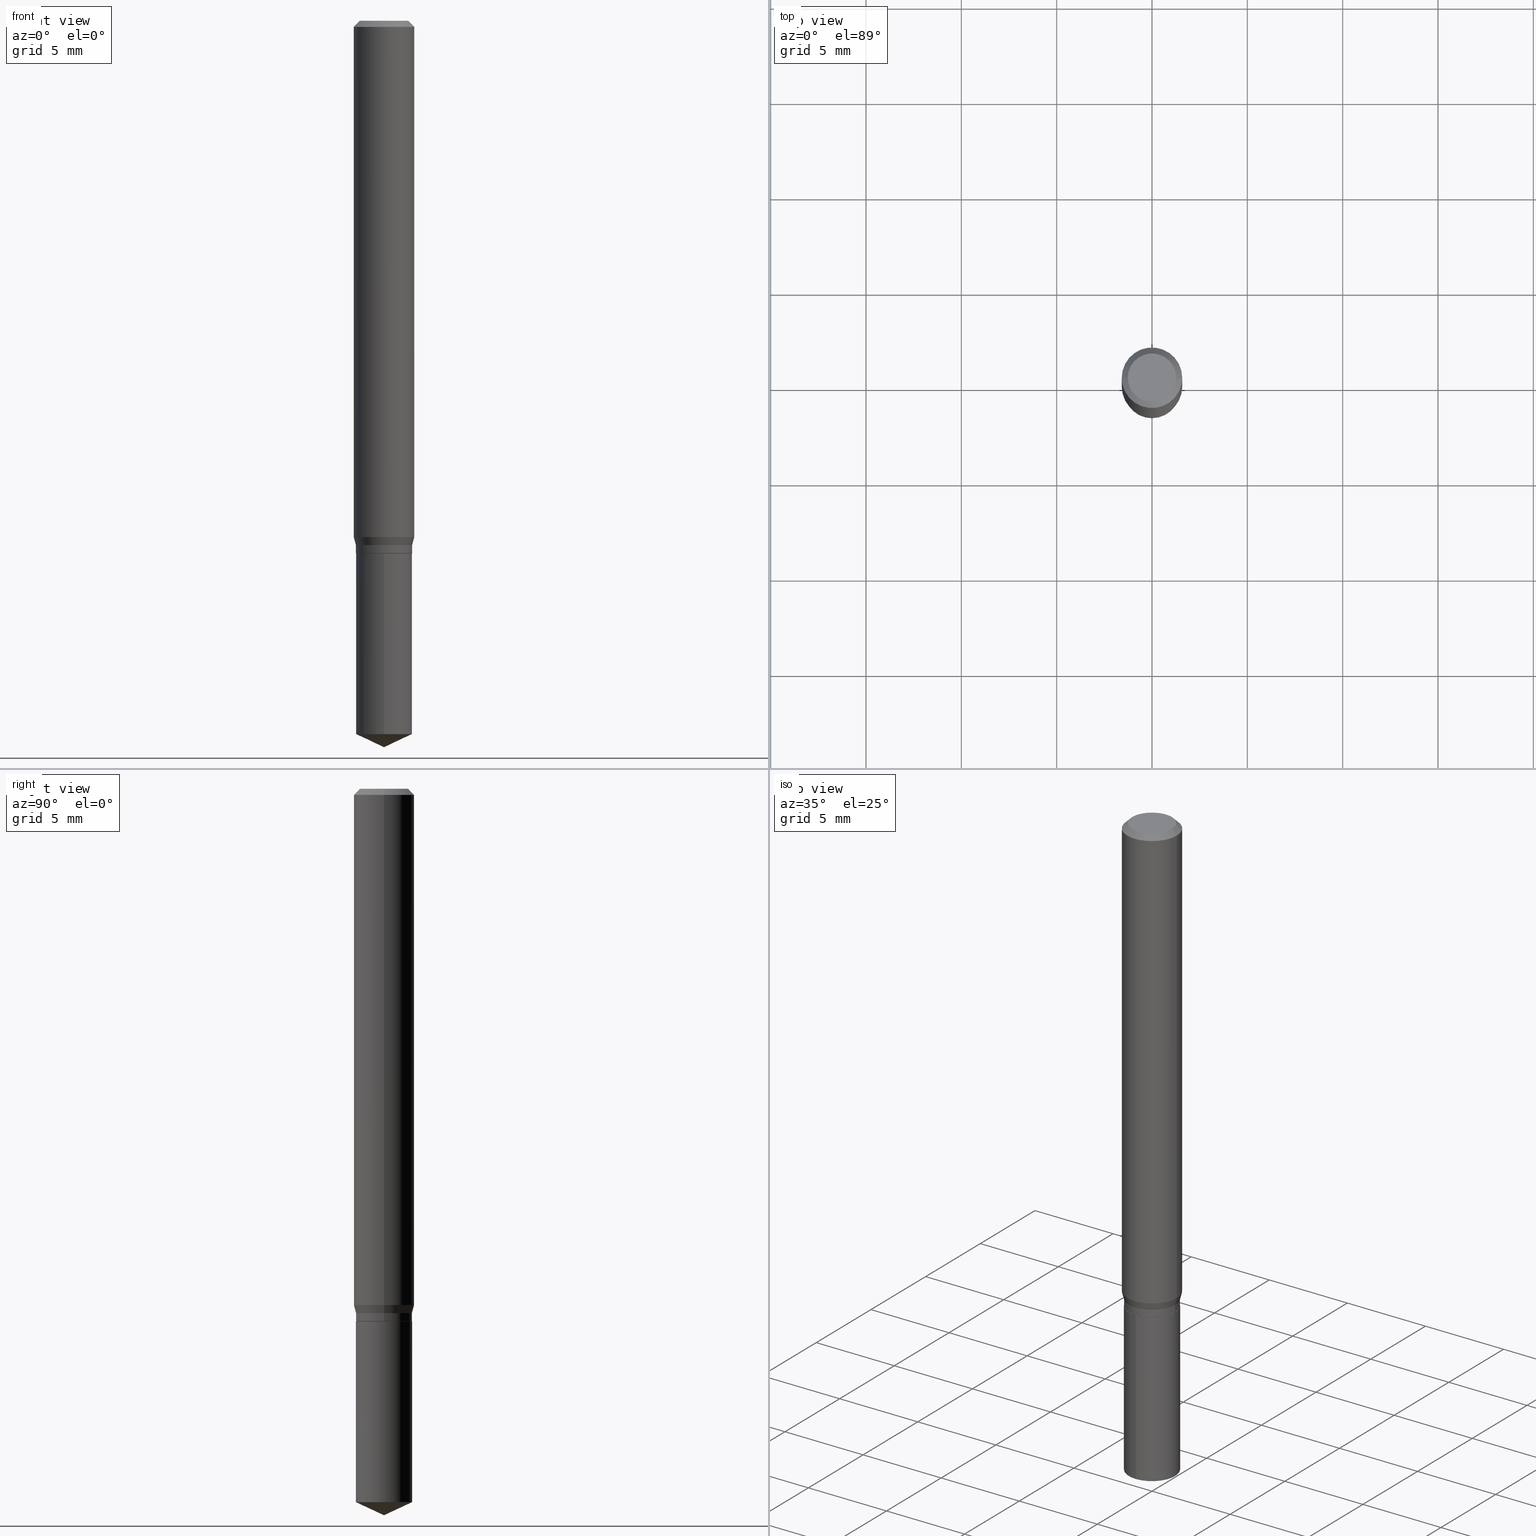
[diagram: canonical four-view strip — front | top / right | iso, engineering-drawing reading convention]
A machine part, canonical four-view strip (front | top / right | iso — engineering-drawing reading convention). The complete STEP part file that produces these views, byte-faithful:
ISO-10303-21;
HEADER;
FILE_DESCRIPTION (( 'STEP AP203' ),
    '1' );
FILE_NAME ('07393.STEP',
    '2024-04-23T21:00:42',
    ( '' ),
    ( '' ),
    'SwSTEP 2.0',
    'SolidWorks 2023',
    '' );
FILE_SCHEMA (( 'CONFIG_CONTROL_DESIGN' ));
ENDSEC;

DATA;
#1 = DIRECTION ( 'NONE',  ( 2.445399690415121250E-29, -3.491580316559632610E-15, -1.000000000000000000 ) ) ;
#2 = ADVANCED_FACE ( 'NONE', ( #189 ), #333, .F. ) ;
#3 = VERTEX_POINT ( 'NONE', #476 ) ;
#4 = AXIS2_PLACEMENT_3D ( 'NONE', #7, #179, #309 ) ;
#5 = ORIENTED_EDGE ( 'NONE', *, *, #56, .F. ) ;
#6 = EDGE_CURVE ( 'NONE', #181, #163, #124, .T. ) ;
#7 = CARTESIAN_POINT ( 'NONE',  ( 2.690015686803650369E-29, -3.840629472727460101E-15, -1.100000000000000089 ) ) ;
#8 =( CONVERSION_BASED_UNIT ( 'INCH', #119 ) LENGTH_UNIT ( ) NAMED_UNIT ( #483 ) );
#9 = DIRECTION ( 'NONE',  ( -2.445468806185136597E-29, 3.491481338843145583E-15, 1.000000000000000000 ) ) ;
#10 = DATE_TIME_ROLE ( 'creation_date' ) ;
#11 = CIRCLE ( 'NONE', #319, 0.06250000000000012490 ) ;
#12 = DIRECTION ( 'NONE',  ( 2.445468806185136597E-29, -3.491481338843145583E-15, -1.000000000000000000 ) ) ;
#13 = LOCAL_TIME ( 17, 0, 42.00000000000000000, #466 ) ;
#14 = DESIGN_CONTEXT ( 'detailed design', #170, 'design' ) ;
#15 = CYLINDRICAL_SURFACE ( 'NONE', #112, 0.06250000000000006939 ) ;
#16 = COORDINATED_UNIVERSAL_TIME_OFFSET ( 5, 0, .BEHIND. ) ;
#17 = CARTESIAN_POINT ( 'NONE',  ( 2.690015686803650369E-29, -3.840629472727460101E-15, -1.100000000000000089 ) ) ;
#18 = SHAPE_DEFINITION_REPRESENTATION ( #453, #386 ) ;
#19 = ORIENTED_EDGE ( 'NONE', *, *, #108, .T. ) ;
#20 = CARTESIAN_POINT ( 'NONE',  ( 2.647464529576028949E-29, -3.779877697431589411E-15, -1.082600000000000007 ) ) ;
#21 = AXIS2_PLACEMENT_3D ( 'NONE', #256, #407, #69 ) ;
#22 = CARTESIAN_POINT ( 'NONE',  ( 3.056836007731440977E-31, -4.364351673553961068E-17, -0.01250000000000008223 ) ) ;
#23 = LINE ( 'NONE', #87, #440 ) ;
#24 = EDGE_CURVE ( 'NONE', #234, #138, #165, .T. ) ;
#25 = DIRECTION ( 'NONE',  ( -2.445468806185136597E-29, 3.491481338843145583E-15, 1.000000000000000000 ) ) ;
#26 = ORIENTED_EDGE ( 'NONE', *, *, #404, .F. ) ;
#27 = DIRECTION ( 'NONE',  ( -0.7071067811865453523, 2.468850131082234184E-15, -0.7071067811865496822 ) ) ;
#28 = DIRECTION ( 'NONE',  ( -2.445468806185136597E-29, 3.491481338843145583E-15, 1.000000000000000000 ) ) ;
#29 = VERTEX_POINT ( 'NONE', #465 ) ;
#30 = AXIS2_PLACEMENT_3D ( 'NONE', #33, #436, #209 ) ;
#31 = EDGE_CURVE ( 'NONE', #218, #268, #35, .T. ) ;
#32 = DIRECTION ( 'NONE',  ( -2.445468806185136597E-29, 3.491481338843145583E-15, 1.000000000000000000 ) ) ;
#33 = CARTESIAN_POINT ( 'NONE',  ( 2.690015686803650369E-29, -3.840629472727460101E-15, -1.100000000000000089 ) ) ;
#34 = DIRECTION ( 'NONE',  ( -2.445399690415121530E-29, 3.491580316559632610E-15, 1.000000000000000000 ) ) ;
#35 = CIRCLE ( 'NONE', #454, 0.06250000000000000000 ) ;
#36 = ORGANIZATION ( 'UNSPECIFIED', 'UNSPECIFIED', '' ) ;
#37 = ORIENTED_EDGE ( 'NONE', *, *, #186, .T. ) ;
#38 = CARTESIAN_POINT ( 'NONE',  ( 0.05754999999999999699, -4.242498974828304422E-15, -1.100000000000000089 ) ) ;
#39 = MANIFOLD_SOLID_BREP ( 'Body-Move/Copy2[1]', #303 ) ;
#40 = ADVANCED_FACE ( 'NONE', ( #300 ), #373, .T. ) ;
#41 = VERTEX_POINT ( 'NONE', #89 ) ;
#42 = DIRECTION ( 'NONE',  ( -2.445468806185136877E-29, 3.491481338843145188E-15, 1.000000000000000000 ) ) ;
#43 = MANIFOLD_SOLID_BREP ( 'Body-Move/Copy2[2]', #462 ) ;
#44 = EDGE_LOOP ( 'NONE', ( #180, #142, #357, #420 ) ) ;
#45 = EDGE_CURVE ( 'NONE', #3, #41, #392, .T. ) ;
#46 = DIRECTION ( 'NONE',  ( -2.445399690415121530E-29, 3.491580316559632610E-15, 1.000000000000000000 ) ) ;
#47 = ORIENTED_EDGE ( 'NONE', *, *, #237, .F. ) ;
#48 = CONICAL_SURFACE ( 'NONE', #311, 84.42940631927396566, 1.134464013796314230 ) ;
#49 = FACE_OUTER_BOUND ( 'NONE', #408, .T. ) ;
#50 = ORIENTED_EDGE ( 'NONE', *, *, #94, .F. ) ;
#51 = AXIS2_PLACEMENT_3D ( 'NONE', #126, #46, #451 ) ;
#52 = EDGE_CURVE ( 'NONE', #3, #79, #169, .T. ) ;
#53 = ORIENTED_EDGE ( 'NONE', *, *, #31, .F. ) ;
#54 = DIRECTION ( 'NONE',  ( 2.438088387897960049E-29, -3.491481338843145188E-15, -1.000000000000000000 ) ) ;
#55 = APPROVAL_STATUS ( 'not_yet_approved' ) ;
#56 = EDGE_CURVE ( 'NONE', #484, #270, #352, .T. ) ;
#57 = CARTESIAN_POINT ( 'NONE',  ( -4.053609834396608520E-16, -0.05805000000000383464, -1.099999999999999867 ) ) ;
#58 = PERSON_AND_ORGANIZATION ( #367, #36 ) ;
#59 = ORIENTED_EDGE ( 'NONE', *, *, #340, .F. ) ;
#60 = CIRCLE ( 'NONE', #4, 0.05804999999999999744 ) ;
#61 = FACE_OUTER_BOUND ( 'NONE', #267, .T. ) ;
#62 = PERSON_AND_ORGANIZATION_ROLE ( 'creator' ) ;
#63 = CALENDAR_DATE ( 2024, 23, 4 ) ;
#64 = ORIENTED_EDGE ( 'NONE', *, *, #227, .T. ) ;
#65 = CARTESIAN_POINT ( 'NONE',  ( 4.124700581087740822E-16, 0.05804999999999614635, -1.100000000000000089 ) ) ;
#66 = EDGE_CURVE ( 'NONE', #79, #29, #11, .T. ) ;
#67 = AXIS2_PLACEMENT_3D ( 'NONE', #159, #306, #419 ) ;
#68 = ORIENTED_EDGE ( 'NONE', *, *, #45, .F. ) ;
#69 = DIRECTION ( 'NONE',  ( 1.000000000000000000, -6.982962677686262766E-15, 0.000000000000000000 ) ) ;
#70 = ORIENTED_EDGE ( 'NONE', *, *, #208, .F. ) ;
#71 = EDGE_LOOP ( 'NONE', ( #477, #122, #5 ) ) ;
#72 = DIRECTION ( 'NONE',  ( 1.000000000000000000, -6.982962677686263555E-15, 0.000000000000000000 ) ) ;
#73 = DIRECTION ( 'NONE',  ( 1.000000000000000000, -6.982962677686262766E-15, 0.000000000000000000 ) ) ;
#74 = AXIS2_PLACEMENT_3D ( 'NONE', #274, #195, #425 ) ;
#75 = LOCAL_TIME ( 17, 0, 42.00000000000000000, #314 ) ;
#76 = FACE_OUTER_BOUND ( 'NONE', #228, .T. ) ;
#77 = DIRECTION ( 'NONE',  ( -1.000000000000000000, 6.982962677686266711E-15, 0.000000000000000000 ) ) ;
#78 = DIRECTION ( 'NONE',  ( -2.445468806185136597E-29, 3.491481338843145583E-15, 1.000000000000000000 ) ) ;
#79 = VERTEX_POINT ( 'NONE', #421 ) ;
#80 = DIRECTION ( 'NONE',  ( 1.000000000000000000, -6.982962677686263555E-15, 0.000000000000000000 ) ) ;
#81 = EDGE_LOOP ( 'NONE', ( #26, #297, #184, #445 ) ) ;
#82 = VECTOR ( 'NONE', #396, 39.37007874015748143 ) ;
#83 = VECTOR ( 'NONE', #42, 39.37007874015748143 ) ;
#84 = CYLINDRICAL_SURFACE ( 'NONE', #51, 0.05804999999999999744 ) ;
#85 = DIRECTION ( 'NONE',  ( 1.000000000000000000, -6.982962677686266711E-15, 4.876176775795935232E-29 ) ) ;
#86 = EDGE_LOOP ( 'NONE', ( #486, #444, #236, #423 ) ) ;
#87 = CARTESIAN_POINT ( 'NONE',  ( -0.05804999999999999744, -3.367407639322851320E-15, -1.082600000000000007 ) ) ;
#88 = AXIS2_PLACEMENT_3D ( 'NONE', #299, #32, #80 ) ;
#89 = CARTESIAN_POINT ( 'NONE',  ( -0.05804999999999999744, -3.396910656636075914E-15, -1.082600000000000007 ) ) ;
#90 = CARTESIAN_POINT ( 'NONE',  ( 2.688792952400557567E-29, -3.838883732058038598E-15, -1.099499999999999922 ) ) ;
#91 = CYLINDRICAL_SURFACE ( 'NONE', #132, 0.06250000000000006939 ) ;
#92 = PERSON_AND_ORGANIZATION ( #367, #36 ) ;
#93 = DIRECTION ( 'NONE',  ( -2.445468806185136877E-29, 3.491481338843145188E-15, 1.000000000000000000 ) ) ;
#94 = EDGE_CURVE ( 'NONE', #163, #181, #174, .T. ) ;
#95 = DIRECTION ( 'NONE',  ( 1.000000000000000000, -6.982962677686266711E-15, 4.876176775795935793E-29 ) ) ;
#96 = DIRECTION ( 'NONE',  ( -2.445468806185136597E-29, 3.491481338843145583E-15, 1.000000000000000000 ) ) ;
#97 = CALENDAR_DATE ( 2024, 23, 4 ) ;
#98 = PERSON_AND_ORGANIZATION_ROLE ( 'classification_officer' ) ;
#99 = ADVANCED_FACE ( 'NONE', ( #328 ), #48, .T. ) ;
#100 = CIRCLE ( 'NONE', #382, 0.05804999999999999744 ) ;
#101 = DIRECTION ( 'NONE',  ( 1.000000000000000000, -6.982962677686266711E-15, 0.000000000000000000 ) ) ;
#102 = VECTOR ( 'NONE', #145, 39.37007874015748143 ) ;
#103 = LINE ( 'NONE', #301, #149 ) ;
#104 = FACE_OUTER_BOUND ( 'NONE', #290, .T. ) ;
#105 = LINE ( 'NONE', #226, #406 ) ;
#106 = VERTEX_POINT ( 'NONE', #468 ) ;
#107 = ORIENTED_EDGE ( 'NONE', *, *, #413, .F. ) ;
#108 = EDGE_CURVE ( 'NONE', #41, #29, #23, .T. ) ;
#109 = FACE_OUTER_BOUND ( 'NONE', #185, .T. ) ;
#110 = CARTESIAN_POINT ( 'NONE',  ( 3.056836007731440977E-31, -4.364351673553961068E-17, -0.01250000000000008223 ) ) ;
#111 = PRODUCT_DEFINITION ( 'UNKNOWN', '', #448, #14 ) ;
#112 = AXIS2_PLACEMENT_3D ( 'NONE', #277, #439, #95 ) ;
#113 = DIRECTION ( 'NONE',  ( -6.982962677686265922E-15, -1.000000000000000000, 4.706025828879006993E-15 ) ) ;
#114 = APPROVAL ( #172, 'UNSPECIFIED' ) ;
#115 = ORIENTED_EDGE ( 'NONE', *, *, #263, .T. ) ;
#116 = EDGE_CURVE ( 'NONE', #262, #106, #60, .T. ) ;
#117 = DIRECTION ( 'NONE',  ( -2.445468806185136597E-29, 3.491481338843145583E-15, 1.000000000000000000 ) ) ;
#118 = CIRCLE ( 'NONE', #337, 0.06250000000000012490 ) ;
#119 = LENGTH_MEASURE_WITH_UNIT ( LENGTH_MEASURE( 0.02539999999999999897 ), #235 );
#120 = VERTEX_POINT ( 'NONE', #394 ) ;
#121 = LINE ( 'NONE', #273, #157 ) ;
#122 = ORIENTED_EDGE ( 'NONE', *, *, #307, .T. ) ;
#123 = ORIENTED_EDGE ( 'NONE', *, *, #298, .T. ) ;
#124 = CIRCLE ( 'NONE', #156, 0.05804999999999999744 ) ;
#125 = CIRCLE ( 'NONE', #463, 0.05804999999999999744 ) ;
#126 = CARTESIAN_POINT ( 'NONE',  ( 2.690015686803650369E-29, -3.840629472727460101E-15, -1.100000000000000089 ) ) ;
#127 = DIRECTION ( 'NONE',  ( 1.000000000000000000, -6.982962677686263555E-15, 0.000000000000000000 ) ) ;
#128 = COORDINATED_UNIVERSAL_TIME_OFFSET ( 5, 0, .BEHIND. ) ;
#129 = CARTESIAN_POINT ( 'NONE',  ( -4.053609834396516322E-16, -0.05805000000000513222, -1.472930840444102163 ) ) ;
#130 = ADVANCED_FACE ( 'NONE', ( #161 ), #428, .F. ) ;
#131 = DIRECTION ( 'NONE',  ( -2.445468806185136597E-29, 3.491481338843145583E-15, 1.000000000000000000 ) ) ;
#132 = AXIS2_PLACEMENT_3D ( 'NONE', #241, #9, #245 ) ;
#133 = ORIENTED_EDGE ( 'NONE', *, *, #485, .T. ) ;
#134 = ORIENTED_EDGE ( 'NONE', *, *, #194, .F. ) ;
#135 = CARTESIAN_POINT ( 'NONE',  ( -0.05804999999999999744, 4.124700581087381397E-16, -2.855441819892972461E-30 ) ) ;
#136 = ORIENTED_EDGE ( 'NONE', *, *, #435, .F. ) ;
#137 = VERTEX_POINT ( 'NONE', #371 ) ;
#138 = VERTEX_POINT ( 'NONE', #478 ) ;
#139 = DIRECTION ( 'NONE',  ( 1.000000000000000000, -6.982962677686264344E-15, 0.000000000000000000 ) ) ;
#140 = CIRCLE ( 'NONE', #67, 0.04999999999999999584 ) ;
#141 = ORIENTED_EDGE ( 'NONE', *, *, #6, .T. ) ;
#142 = ORIENTED_EDGE ( 'NONE', *, *, #194, .T. ) ;
#143 = UNCERTAINTY_MEASURE_WITH_UNIT (LENGTH_MEASURE( 1.000000000000000082E-05 ), #8, 'distance_accuracy_value', 'NONE');
#144 = DIRECTION ( 'NONE',  ( -0.7071067811865232589, 7.493145998870265808E-15, 0.7071067811865715536 ) ) ;
#145 = DIRECTION ( 'NONE',  ( -2.445468806185136877E-29, 3.491481338843145188E-15, 1.000000000000000000 ) ) ;
#146 = CARTESIAN_POINT ( 'NONE',  ( 0.04999999999999999584, -4.077247707424184212E-16, -1.592040838888913461E-18 ) ) ;
#147 = CC_DESIGN_PERSON_AND_ORGANIZATION_ASSIGNMENT ( #403, #62, ( #111 ) ) ;
#148 = VECTOR ( 'NONE', #291, 39.37007874015748143 ) ;
#149 = VECTOR ( 'NONE', #385, 39.37007874015748854 ) ;
#150 = EDGE_CURVE ( 'NONE', #181, #41, #200, .T. ) ;
#151 = DIRECTION ( 'NONE',  ( -2.445468806185136597E-29, 3.491481338843145583E-15, 1.000000000000000000 ) ) ;
#152 = CARTESIAN_POINT ( 'NONE',  ( 2.690015686803650369E-29, -3.840629472727460101E-15, -1.100000000000000089 ) ) ;
#153 = CYLINDRICAL_SURFACE ( 'NONE', #417, 0.05804999999999999744 ) ;
#154 = FACE_OUTER_BOUND ( 'NONE', #44, .T. ) ;
#155 = ADVANCED_FACE ( 'NONE', ( #61 ), #91, .T. ) ;
#156 = AXIS2_PLACEMENT_3D ( 'NONE', #171, #25, #472 ) ;
#157 = VECTOR ( 'NONE', #389, 39.37007874015748854 ) ;
#158 = PLANE ( 'NONE',  #233 ) ;
#159 = CARTESIAN_POINT ( 'NONE',  ( 3.893286209682126177E-47, -5.558580879666067980E-33, -1.592040838891559689E-18 ) ) ;
#160 = ORIENTED_EDGE ( 'NONE', *, *, #31, .T. ) ;
#161 = FACE_OUTER_BOUND ( 'NONE', #391, .T. ) ;
#162 = DIRECTION ( 'NONE',  ( 1.000000000000000000, 0.000000000000000000, 0.000000000000000000 ) ) ;
#163 = VERTEX_POINT ( 'NONE', #164 ) ;
#164 = CARTESIAN_POINT ( 'NONE',  ( 0.05804999999999999744, -4.244244715497725926E-15, -1.099499999999999922 ) ) ;
#165 = CIRCLE ( 'NONE', #251, 0.05754999999999999699 ) ;
#166 = AXIS2_PLACEMENT_3D ( 'NONE', #17, #323, #282 ) ;
#167 = APPROVAL_ROLE ( '' ) ;
#168 = DIRECTION ( 'NONE',  ( -1.000000000000000000, 6.982962677686266711E-15, 0.000000000000000000 ) ) ;
#169 = LINE ( 'NONE', #313, #481 ) ;
#170 = APPLICATION_CONTEXT ( 'configuration controlled 3d designs of mechanical parts and assemblies' ) ;
#171 = CARTESIAN_POINT ( 'NONE',  ( 2.688792952400557567E-29, -3.838883732058038598E-15, -1.099499999999999922 ) ) ;
#172 = APPROVAL_STATUS ( 'not_yet_approved' ) ;
#173 = EDGE_CURVE ( 'NONE', #270, #106, #220, .T. ) ;
#174 = CIRCLE ( 'NONE', #399, 0.05804999999999999744 ) ;
#175 = DIRECTION ( 'NONE',  ( 0.2588190451025211281, 1.565188264969623940E-15, 0.9659258262890682012 ) ) ;
#176 = ADVANCED_FACE ( 'NONE', ( #203 ), #15, .T. ) ;
#177 = DIRECTION ( 'NONE',  ( 1.000000000000000000, -6.982962677686262766E-15, 0.000000000000000000 ) ) ;
#178 = ORIENTED_EDGE ( 'NONE', *, *, #237, .T. ) ;
#179 = DIRECTION ( 'NONE',  ( -2.445399690415121530E-29, 3.491580316559632610E-15, 1.000000000000000000 ) ) ;
#180 = ORIENTED_EDGE ( 'NONE', *, *, #227, .F. ) ;
#181 = VERTEX_POINT ( 'NONE', #250 ) ;
#182 = VECTOR ( 'NONE', #144, 39.37007874015748854 ) ;
#183 = SECURITY_CLASSIFICATION ( '', '', #350 ) ;
#184 = ORIENTED_EDGE ( 'NONE', *, *, #173, .T. ) ;
#185 = EDGE_LOOP ( 'NONE', ( #398, #368, #68, #231 ) ) ;
#186 = EDGE_CURVE ( 'NONE', #268, #218, #447, .T. ) ;
#187 = CONICAL_SURFACE ( 'NONE', #415, 0.05804999999999999744, 0.2617993877991497964 ) ;
#188 = AXIS2_PLACEMENT_3D ( 'NONE', #338, #151, #450 ) ;
#189 = FACE_OUTER_BOUND ( 'NONE', #326, .T. ) ;
#190 = PERSON_AND_ORGANIZATION ( #367, #36 ) ;
#191 = ORIENTED_EDGE ( 'NONE', *, *, #435, .T. ) ;
#192 = FACE_OUTER_BOUND ( 'NONE', #197, .T. ) ;
#193 = CARTESIAN_POINT ( 'NONE',  ( 2.690015686803650369E-29, -3.840629472727460101E-15, -1.100000000000000089 ) ) ;
#194 = EDGE_CURVE ( 'NONE', #138, #234, #265, .T. ) ;
#195 = DIRECTION ( 'NONE',  ( -2.445399690415121530E-29, 3.491580316559632610E-15, 1.000000000000000000 ) ) ;
#196 = CARTESIAN_POINT ( 'NONE',  ( 0.000000000000000000, 0.000000000000000000, 0.000000000000000000 ) ) ;
#197 = EDGE_LOOP ( 'NONE', ( #123, #369, #449, #345 ) ) ;
#198 = PRODUCT ( '07393', '07393', '', ( #426 ) ) ;
#199 = ADVANCED_FACE ( 'NONE', ( #230 ), #212, .T. ) ;
#200 = LINE ( 'NONE', #135, #279 ) ;
#201 = PERSON_AND_ORGANIZATION ( #367, #36 ) ;
#202 = APPROVAL ( #55, 'UNSPECIFIED' ) ;
#203 = FACE_OUTER_BOUND ( 'NONE', #86, .T. ) ;
#204 = VECTOR ( 'NONE', #27, 39.37007874015748143 ) ;
#205 = PERSON_AND_ORGANIZATION ( #367, #36 ) ;
#206 = APPLICATION_PROTOCOL_DEFINITION ( 'international standard', 'config_control_design', 1994, #170 ) ;
#207 = DATE_AND_TIME ( #429, #75 ) ;
#208 = EDGE_CURVE ( 'NONE', #41, #3, #487, .T. ) ;
#209 = DIRECTION ( 'NONE',  ( 1.000000000000000000, -6.982962677686265922E-15, 4.876176775795935793E-29 ) ) ;
#210 = CC_DESIGN_PERSON_AND_ORGANIZATION_ASSIGNMENT ( #190, #317, ( #198 ) ) ;
#211 = CALENDAR_DATE ( 2024, 23, 4 ) ;
#212 = CONICAL_SURFACE ( 'NONE', #363, 0.05754999999999999699, 0.7853981633974141952 ) ;
#213 = ORIENTED_EDGE ( 'NONE', *, *, #150, .F. ) ;
#214 = CARTESIAN_POINT ( 'NONE',  ( 2.647464529576028949E-29, -3.779877697431589411E-15, -1.082600000000000007 ) ) ;
#215 = FACE_OUTER_BOUND ( 'NONE', #457, .T. ) ;
#216 = DIRECTION ( 'NONE',  ( -2.445468806185136597E-29, 3.491481338843145583E-15, 1.000000000000000000 ) ) ;
#217 = DIRECTION ( 'NONE',  ( 1.000000000000000000, -6.982962677686266711E-15, 0.000000000000000000 ) ) ;
#218 = VERTEX_POINT ( 'NONE', #334 ) ;
#219 = DIRECTION ( 'NONE',  ( -2.445468806185136597E-29, 3.491481338843145583E-15, 1.000000000000000000 ) ) ;
#220 = LINE ( 'NONE', #57, #82 ) ;
#221 = DIRECTION ( 'NONE',  ( -6.328713451373368590E-15, -0.9063077870366484934, 0.4226182617407026054 ) ) ;
#222 = ORIENTED_EDGE ( 'NONE', *, *, #66, .F. ) ;
#223 = DIRECTION ( 'NONE',  ( 1.000000000000000000, -6.982962677686265922E-15, 4.875957971899673662E-29 ) ) ;
#224 = AXIS2_PLACEMENT_3D ( 'NONE', #261, #411, #223 ) ;
#225 = ORIENTED_EDGE ( 'NONE', *, *, #116, .T. ) ;
#226 = CARTESIAN_POINT ( 'NONE',  ( 3.668099535622682155E-29, -5.237370474839448718E-15, -1.500000000000000222 ) ) ;
#227 = EDGE_CURVE ( 'NONE', #138, #181, #293, .T. ) ;
#228 = EDGE_LOOP ( 'NONE', ( #410, #133, #489 ) ) ;
#229 = CARTESIAN_POINT ( 'NONE',  ( 0.05804999999999999744, -4.053609834396877719E-16, 2.830620618349540414E-30 ) ) ;
#230 = FACE_OUTER_BOUND ( 'NONE', #412, .T. ) ;
#231 = ORIENTED_EDGE ( 'NONE', *, *, #343, .F. ) ;
#232 = CARTESIAN_POINT ( 'NONE',  ( -0.05754999999999999699, -3.431712128297522910E-15, -1.100000000000000089 ) ) ;
#233 = AXIS2_PLACEMENT_3D ( 'NONE', #341, #1, #383 ) ;
#234 = VERTEX_POINT ( 'NONE', #38 ) ;
#235 =( LENGTH_UNIT ( ) NAMED_UNIT ( * ) SI_UNIT ( $, .METRE. ) );
#236 = ORIENTED_EDGE ( 'NONE', *, *, #186, .F. ) ;
#237 = EDGE_CURVE ( 'NONE', #336, #268, #289, .T. ) ;
#238 = DIRECTION ( 'NONE',  ( 1.000000000000000000, -6.982962677686262766E-15, 0.000000000000000000 ) ) ;
#239 = ORIENTED_EDGE ( 'NONE', *, *, #388, .F. ) ;
#240 = AXIS2_PLACEMENT_3D ( 'NONE', #401, #216, #101 ) ;
#241 = CARTESIAN_POINT ( 'NONE',  ( 0.000000000000000000, 0.000000000000000000, 0.000000000000000000 ) ) ;
#242 = ADVANCED_FACE ( 'NONE', ( #104 ), #329, .T. ) ;
#243 = CARTESIAN_POINT ( 'NONE',  ( 1.946643104841063088E-47, -2.779290439833033990E-33, -7.960204194457798443E-19 ) ) ;
#244 = APPROVAL_STATUS ( 'not_yet_approved' ) ;
#245 = DIRECTION ( 'NONE',  ( 1.000000000000000000, -6.982962677686266711E-15, 4.876176775795935793E-29 ) ) ;
#246 = DIRECTION ( 'NONE',  ( -2.445468806185136597E-29, 3.491481338843145583E-15, 1.000000000000000000 ) ) ;
#247 = CC_DESIGN_PERSON_AND_ORGANIZATION_ASSIGNMENT ( #92, #98, ( #183 ) ) ;
#248 = APPROVAL_DATE_TIME ( #321, #202 ) ;
#249 = CARTESIAN_POINT ( 'NONE',  ( 3.601980648571909248E-29, -5.142747454660128608E-15, -1.472930840444102385 ) ) ;
#250 = CARTESIAN_POINT ( 'NONE',  ( -0.05804999999999999744, -3.396910656636075914E-15, -1.099499999999999922 ) ) ;
#251 = AXIS2_PLACEMENT_3D ( 'NONE', #280, #96, #177 ) ;
#252 = DATE_AND_TIME ( #211, #304 ) ;
#253 = CARTESIAN_POINT ( 'NONE',  ( 2.690015686803650369E-29, -3.840629472727460101E-15, -1.100000000000000089 ) ) ;
#254 = ORIENTED_EDGE ( 'NONE', *, *, #260, .F. ) ;
#255 = AXIS2_PLACEMENT_3D ( 'NONE', #196, #347, #162 ) ;
#256 = CARTESIAN_POINT ( 'NONE',  ( 2.690015686803650369E-29, -3.840629472727460101E-15, -1.100000000000000089 ) ) ;
#257 = FACE_OUTER_BOUND ( 'NONE', #359, .T. ) ;
#258 = ADVANCED_FACE ( 'NONE', ( #257 ), #187, .T. ) ;
#259 = DIRECTION ( 'NONE',  ( 2.445468806185136597E-29, -3.491481338843145583E-15, -1.000000000000000000 ) ) ;
#260 = EDGE_CURVE ( 'NONE', #29, #79, #118, .T. ) ;
#261 = CARTESIAN_POINT ( 'NONE',  ( 3.893286209682126177E-47, -5.558580879666067980E-33, -1.592040838891559689E-18 ) ) ;
#262 = VERTEX_POINT ( 'NONE', #65 ) ;
#263 = EDGE_CURVE ( 'NONE', #106, #262, #100, .T. ) ;
#264 = ADVANCED_FACE ( 'NONE', ( #318 ), #467, .T. ) ;
#265 = CIRCLE ( 'NONE', #21, 0.05754999999999999699 ) ;
#266 = AXIS2_PLACEMENT_3D ( 'NONE', #377, #34, #292 ) ;
#267 = EDGE_LOOP ( 'NONE', ( #294, #376, #479, #53 ) ) ;
#268 = VERTEX_POINT ( 'NONE', #475 ) ;
#269 = ADVANCED_FACE ( 'NONE', ( #215 ), #320, .T. ) ;
#270 = VERTEX_POINT ( 'NONE', #129 ) ;
#271 = APPROVAL ( #244, 'UNSPECIFIED' ) ;
#272 = AXIS2_PLACEMENT_3D ( 'NONE', #110, #259, #77 ) ;
#273 = CARTESIAN_POINT ( 'NONE',  ( 3.668252923656895710E-29, -5.237152723863177100E-15, -1.500000000000000222 ) ) ;
#274 = CARTESIAN_POINT ( 'NONE',  ( 3.601980648571909248E-29, -5.142747454660128608E-15, -1.472930840444102385 ) ) ;
#275 = CALENDAR_DATE ( 2024, 23, 4 ) ;
#276 = LINE ( 'NONE', #430, #393 ) ;
#277 = CARTESIAN_POINT ( 'NONE',  ( 0.000000000000000000, 0.000000000000000000, 0.000000000000000000 ) ) ;
#278 = EDGE_CURVE ( 'NONE', #29, #218, #276, .T. ) ;
#279 = VECTOR ( 'NONE', #349, 39.37007874015748143 ) ;
#280 = CARTESIAN_POINT ( 'NONE',  ( 2.690015686803650369E-29, -3.840629472727460101E-15, -1.100000000000000089 ) ) ;
#281 = CC_DESIGN_SECURITY_CLASSIFICATION ( #183, ( #448 ) ) ;
#282 = DIRECTION ( 'NONE',  ( -6.982962677686265922E-15, -1.000000000000000000, 2.353012914439503496E-15 ) ) ;
#283 = CC_DESIGN_PERSON_AND_ORGANIZATION_ASSIGNMENT ( #469, #322, ( #448 ) ) ;
#284 = COORDINATED_UNIVERSAL_TIME_OFFSET ( 5, 0, .BEHIND. ) ;
#285 = EDGE_LOOP ( 'NONE', ( #213, #141, #348, #70 ) ) ;
#286 = DIRECTION ( 'NONE',  ( -6.982962677686265922E-15, -1.000000000000000000, 2.353012914439503496E-15 ) ) ;
#287 = CC_DESIGN_APPROVAL ( #114, ( #448 ) ) ;
#288 = CARTESIAN_POINT ( 'NONE',  ( 4.124700581087649609E-16, 0.05804999999999615329, -1.100000000000000089 ) ) ;
#289 = LINE ( 'NONE', #442, #148 ) ;
#290 = EDGE_LOOP ( 'NONE', ( #47, #59, #418, #160 ) ) ;
#291 = DIRECTION ( 'NONE',  ( 0.7071067811865453523, -7.319954787623248157E-15, -0.7071067811865496822 ) ) ;
#292 = DIRECTION ( 'NONE',  ( -6.982962677686267499E-15, -1.000000000000000000, 3.520397390770469253E-15 ) ) ;
#293 = LINE ( 'NONE', #232, #182 ) ;
#294 = ORIENTED_EDGE ( 'NONE', *, *, #278, .F. ) ;
#295 = CYLINDRICAL_SURFACE ( 'NONE', #188, 0.05804999999999999744 ) ;
#296 = LOCAL_TIME ( 17, 0, 42.00000000000000000, #16 ) ;
#297 = ORIENTED_EDGE ( 'NONE', *, *, #56, .T. ) ;
#298 = EDGE_CURVE ( 'NONE', #270, #484, #125, .T. ) ;
#299 = CARTESIAN_POINT ( 'NONE',  ( 2.647464529576028949E-29, -3.779877697431589411E-15, -1.082600000000000007 ) ) ;
#300 = FACE_OUTER_BOUND ( 'NONE', #325, .T. ) ;
#301 = CARTESIAN_POINT ( 'NONE',  ( 0.05754999999999999699, -4.242498974828304422E-15, -1.100000000000000089 ) ) ;
#302 = CARTESIAN_POINT ( 'NONE',  ( 4.124700581087740822E-16, 0.05804999999999484878, -1.472930840444102829 ) ) ;
#303 = CLOSED_SHELL ( 'NONE', ( #446, #355, #99, #264, #460 ) ) ;
#304 = LOCAL_TIME ( 17, 0, 42.00000000000000000, #128 ) ;
#305 = ORIENTED_EDGE ( 'NONE', *, *, #108, .F. ) ;
#306 = DIRECTION ( 'NONE',  ( -2.445468806185136597E-29, 3.491481338843145583E-15, 1.000000000000000000 ) ) ;
#307 = EDGE_CURVE ( 'NONE', #137, #270, #105, .T. ) ;
#308 =( NAMED_UNIT ( * ) PLANE_ANGLE_UNIT ( ) SI_UNIT ( $, .RADIAN. ) );
#309 = DIRECTION ( 'NONE',  ( -6.982962677686265922E-15, -1.000000000000000000, 2.353012914439503496E-15 ) ) ;
#310 = FACE_OUTER_BOUND ( 'NONE', #285, .T. ) ;
#311 = AXIS2_PLACEMENT_3D ( 'NONE', #354, #431, #346 ) ;
#312 = AXIS2_PLACEMENT_3D ( 'NONE', #22, #12, #168 ) ;
#313 = CARTESIAN_POINT ( 'NONE',  ( 0.05804999999999999744, -4.185238680871277528E-15, -1.082600000000000007 ) ) ;
#314 = COORDINATED_UNIVERSAL_TIME_OFFSET ( 5, 0, .BEHIND. ) ;
#315 = DIRECTION ( 'NONE',  ( 1.000000000000000000, -6.982962677686263555E-15, 0.000000000000000000 ) ) ;
#316 = PERSON_AND_ORGANIZATION_ROLE ( 'creator' ) ;
#317 = PERSON_AND_ORGANIZATION_ROLE ( 'design_owner' ) ;
#318 = FACE_OUTER_BOUND ( 'NONE', #81, .T. ) ;
#319 = AXIS2_PLACEMENT_3D ( 'NONE', #366, #131, #139 ) ;
#320 = CONICAL_SURFACE ( 'NONE', #312, 0.06250000000000000000, 0.7853981633974452814 ) ;
#321 = DATE_AND_TIME ( #97, #296 ) ;
#322 = PERSON_AND_ORGANIZATION_ROLE ( 'design_supplier' ) ;
#323 = DIRECTION ( 'NONE',  ( -2.445399690415121530E-29, 3.491580316559632610E-15, 1.000000000000000000 ) ) ;
#324 = DIRECTION ( 'NONE',  ( -1.000000000000000000, 6.982962677686265922E-15, -4.876176775795935793E-29 ) ) ;
#325 = EDGE_LOOP ( 'NONE', ( #305, #387, #390, #254 ) ) ;
#326 = EDGE_LOOP ( 'NONE', ( #379, #134 ) ) ;
#327 = DIRECTION ( 'NONE',  ( -2.445468806185136597E-29, 3.491481338843145583E-15, 1.000000000000000000 ) ) ;
#328 = FACE_OUTER_BOUND ( 'NONE', #71, .T. ) ;
#329 = CONICAL_SURFACE ( 'NONE', #272, 0.06250000000000000000, 0.7853981633974452814 ) ;
#330 =( GEOMETRIC_REPRESENTATION_CONTEXT ( 3 ) GLOBAL_UNCERTAINTY_ASSIGNED_CONTEXT ( ( #143 ) ) GLOBAL_UNIT_ASSIGNED_CONTEXT ( ( #8, #308, #342 ) ) REPRESENTATION_CONTEXT ( 'NONE', 'WORKASPACE' ) );
#331 = ORIENTED_EDGE ( 'NONE', *, *, #45, .T. ) ;
#332 = CC_DESIGN_DATE_AND_TIME_ASSIGNMENT ( #252, #473, ( #183 ) ) ;
#333 = PLANE ( 'NONE',  #30 ) ;
#334 = CARTESIAN_POINT ( 'NONE',  ( -0.06250000000000000000, -1.438678788939213377E-15, -0.01250000000000008223 ) ) ;
#335 = PRODUCT_RELATED_PRODUCT_CATEGORY ( 'detail', '', ( #198 ) ) ;
#336 = VERTEX_POINT ( 'NONE', #146 ) ;
#337 = AXIS2_PLACEMENT_3D ( 'NONE', #452, #219, #361 ) ;
#338 = CARTESIAN_POINT ( 'NONE',  ( 0.000000000000000000, 0.000000000000000000, 0.000000000000000000 ) ) ;
#339 = CC_DESIGN_APPROVAL ( #271, ( #111 ) ) ;
#340 = EDGE_CURVE ( 'NONE', #120, #336, #344, .T. ) ;
#341 = CARTESIAN_POINT ( 'NONE',  ( 2.690015686803650369E-29, -3.840629472727460101E-15, -1.100000000000000089 ) ) ;
#342 =( NAMED_UNIT ( * ) SI_UNIT ( $, .STERADIAN. ) SOLID_ANGLE_UNIT ( ) );
#343 = EDGE_CURVE ( 'NONE', #163, #3, #375, .T. ) ;
#344 = CIRCLE ( 'NONE', #224, 0.04999999999999999584 ) ;
#345 = ORIENTED_EDGE ( 'NONE', *, *, #173, .F. ) ;
#346 = DIRECTION ( 'NONE',  ( -6.982962677686267499E-15, -1.000000000000000000, 3.520397390770469253E-15 ) ) ;
#347 = DIRECTION ( 'NONE',  ( 0.000000000000000000, 0.000000000000000000, 1.000000000000000000 ) ) ;
#348 = ORIENTED_EDGE ( 'NONE', *, *, #343, .T. ) ;
#349 = DIRECTION ( 'NONE',  ( -2.445468806185136877E-29, 3.491481338843145188E-15, 1.000000000000000000 ) ) ;
#350 = SECURITY_CLASSIFICATION_LEVEL ( 'unclassified' ) ;
#351 = APPLICATION_CONTEXT ( 'configuration controlled 3d designs of mechanical parts and assemblies' ) ;
#352 = CIRCLE ( 'NONE', #74, 0.05804999999999999744 ) ;
#353 = CONICAL_SURFACE ( 'NONE', #266, 84.42940631927396566, 1.134464013796314230 ) ;
#354 = CARTESIAN_POINT ( 'NONE',  ( -9.260740279983036507E-28, 1.322265303911854087E-13, 37.87007874015748143 ) ) ;
#355 = ADVANCED_FACE ( 'NONE', ( #76 ), #353, .T. ) ;
#356 = APPROVAL_DATE_TIME ( #207, #114 ) ;
#357 = ORIENTED_EDGE ( 'NONE', *, *, #413, .T. ) ;
#358 = APPROVAL_DATE_TIME ( #364, #271 ) ;
#359 = EDGE_LOOP ( 'NONE', ( #331, #19, #222, #381 ) ) ;
#360 = DIRECTION ( 'NONE',  ( -2.445399690415121530E-29, 3.491580316559632610E-15, 1.000000000000000000 ) ) ;
#361 = DIRECTION ( 'NONE',  ( 1.000000000000000000, -6.982962677686264344E-15, 0.000000000000000000 ) ) ;
#362 = ADVANCED_FACE ( 'NONE', ( #109 ), #295, .T. ) ;
#363 = AXIS2_PLACEMENT_3D ( 'NONE', #152, #78, #73 ) ;
#364 = DATE_AND_TIME ( #63, #400 ) ;
#365 = ORIENTED_EDGE ( 'NONE', *, *, #24, .T. ) ;
#366 = CARTESIAN_POINT ( 'NONE',  ( 2.606851098019143624E-29, -3.721892480843014397E-15, -1.065992373906318180 ) ) ;
#367 = PERSON ( 'UNSPECIFIED', 'UNSPECIFIED', 'UNSPECIFIED', ('UNSPECIFIED'), ('UNSPECIFIED'), ('UNSPECIFIED') ) ;
#368 = ORIENTED_EDGE ( 'NONE', *, *, #150, .T. ) ;
#369 = ORIENTED_EDGE ( 'NONE', *, *, #404, .T. ) ;
#370 = CARTESIAN_POINT ( 'NONE',  ( -0.06250000000000000000, 3.927916506198521080E-16, -0.01250000000000008223 ) ) ;
#371 = CARTESIAN_POINT ( 'NONE',  ( 3.668099535622682715E-29, -5.237370474839449507E-15, -1.500000000000000222 ) ) ;
#372 = CC_DESIGN_DATE_AND_TIME_ASSIGNMENT ( #437, #10, ( #111 ) ) ;
#373 = CONICAL_SURFACE ( 'NONE', #433, 0.05804999999999999744, 0.2617993877991497964 ) ;
#374 = APPROVAL_PERSON_ORGANIZATION ( #205, #271, #167 ) ;
#375 = LINE ( 'NONE', #229, #102 ) ;
#376 = ORIENTED_EDGE ( 'NONE', *, *, #260, .T. ) ;
#377 = CARTESIAN_POINT ( 'NONE',  ( -9.260740279983036507E-28, 1.322265303911854087E-13, 37.87007874015748143 ) ) ;
#378 = CARTESIAN_POINT ( 'NONE',  ( 2.647464529576028949E-29, -3.779877697431589411E-15, -1.082600000000000007 ) ) ;
#379 = ORIENTED_EDGE ( 'NONE', *, *, #24, .F. ) ;
#380 = DIRECTION ( 'NONE',  ( 1.000000000000000000, -6.982962677686263555E-15, 0.000000000000000000 ) ) ;
#381 = ORIENTED_EDGE ( 'NONE', *, *, #52, .F. ) ;
#382 = AXIS2_PLACEMENT_3D ( 'NONE', #253, #360, #286 ) ;
#383 = DIRECTION ( 'NONE',  ( 6.982962677686265922E-15, 1.000000000000000000, -3.491580316559632610E-15 ) ) ;
#384 = VECTOR ( 'NONE', #441, 39.37007874015748143 ) ;
#385 = DIRECTION ( 'NONE',  ( 0.7071067811865232589, -2.468850131082003836E-15, 0.7071067811865715536 ) ) ;
#386 = ADVANCED_BREP_SHAPE_REPRESENTATION ( '07393', ( #39, #43, #255 ), #330 ) ;
#387 = ORIENTED_EDGE ( 'NONE', *, *, #208, .T. ) ;
#388 = EDGE_CURVE ( 'NONE', #120, #218, #414, .T. ) ;
#389 = DIRECTION ( 'NONE',  ( 6.439704144417024831E-15, 0.9063077870366513800, 0.4226182617406963327 ) ) ;
#390 = ORIENTED_EDGE ( 'NONE', *, *, #52, .T. ) ;
#391 = EDGE_LOOP ( 'NONE', ( #459, #191 ) ) ;
#392 = CIRCLE ( 'NONE', #474, 0.05804999999999999744 ) ;
#393 = VECTOR ( 'NONE', #93, 39.37007874015748143 ) ;
#394 = CARTESIAN_POINT ( 'NONE',  ( -0.04999999999999999584, 3.709698922520826725E-16, -1.592040838894077649E-18 ) ) ;
#395 = PERSON_AND_ORGANIZATION ( #367, #36 ) ;
#396 = DIRECTION ( 'NONE',  ( -2.445399690415121810E-29, 3.491580316559632610E-15, 1.000000000000000000 ) ) ;
#397 = APPROVAL_ROLE ( '' ) ;
#398 = ORIENTED_EDGE ( 'NONE', *, *, #94, .T. ) ;
#399 = AXIS2_PLACEMENT_3D ( 'NONE', #90, #28, #315 ) ;
#400 = LOCAL_TIME ( 17, 0, 42.00000000000000000, #284 ) ;
#401 = CARTESIAN_POINT ( 'NONE',  ( 3.056836007731440977E-31, -4.364351673553961068E-17, -0.01250000000000008223 ) ) ;
#402 = CARTESIAN_POINT ( 'NONE',  ( 3.056836007731440977E-31, -4.364351673553961068E-17, -0.01250000000000008223 ) ) ;
#403 = PERSON_AND_ORGANIZATION ( #367, #36 ) ;
#404 = EDGE_CURVE ( 'NONE', #484, #262, #480, .T. ) ;
#405 = AXIS2_PLACEMENT_3D ( 'NONE', #243, #54, #324 ) ;
#406 = VECTOR ( 'NONE', #221, 39.37007874015748143 ) ;
#407 = DIRECTION ( 'NONE',  ( -2.445468806185136597E-29, 3.491481338843145583E-15, 1.000000000000000000 ) ) ;
#408 = EDGE_LOOP ( 'NONE', ( #115, #225 ) ) ;
#409 = DIRECTION ( 'NONE',  ( -2.445468806185136597E-29, 3.491481338843145583E-15, 1.000000000000000000 ) ) ;
#410 = ORIENTED_EDGE ( 'NONE', *, *, #307, .F. ) ;
#411 = DIRECTION ( 'NONE',  ( -2.445468806185136597E-29, 3.491481338843145583E-15, 1.000000000000000000 ) ) ;
#412 = EDGE_LOOP ( 'NONE', ( #365, #64, #50, #107 ) ) ;
#413 = EDGE_CURVE ( 'NONE', #234, #163, #103, .T. ) ;
#414 = LINE ( 'NONE', #370, #204 ) ;
#415 = AXIS2_PLACEMENT_3D ( 'NONE', #378, #409, #72 ) ;
#416 = DIRECTION ( 'NONE',  ( -2.445468806185136597E-29, 3.491481338843145583E-15, 1.000000000000000000 ) ) ;
#417 = AXIS2_PLACEMENT_3D ( 'NONE', #458, #416, #85 ) ;
#418 = ORIENTED_EDGE ( 'NONE', *, *, #388, .T. ) ;
#419 = DIRECTION ( 'NONE',  ( 1.000000000000000000, -6.982962677686265922E-15, 4.875957971899673662E-29 ) ) ;
#420 = ORIENTED_EDGE ( 'NONE', *, *, #6, .F. ) ;
#421 = CARTESIAN_POINT ( 'NONE',  ( 0.06250000000000012490, -4.158327648198406856E-15, -1.065992373906318180 ) ) ;
#422 = LINE ( 'NONE', #490, #83 ) ;
#423 = ORIENTED_EDGE ( 'NONE', *, *, #427, .F. ) ;
#424 = APPROVAL_PERSON_ORGANIZATION ( #201, #202, #397 ) ;
#425 = DIRECTION ( 'NONE',  ( -6.982962677686265922E-15, -1.000000000000000000, 4.706025828879006993E-15 ) ) ;
#426 = MECHANICAL_CONTEXT ( 'NONE', #351, 'mechanical' ) ;
#427 = EDGE_CURVE ( 'NONE', #79, #268, #422, .T. ) ;
#428 = PLANE ( 'NONE',  #405 ) ;
#429 = CALENDAR_DATE ( 2024, 23, 4 ) ;
#430 = CARTESIAN_POINT ( 'NONE',  ( -0.06250000000000006939, 4.440892098500631092E-16, -3.074334431409319267E-30 ) ) ;
#431 = DIRECTION ( 'NONE',  ( -2.445399690415121530E-29, 3.491580316559632610E-15, 1.000000000000000000 ) ) ;
#432 = APPROVAL_ROLE ( '' ) ;
#433 = AXIS2_PLACEMENT_3D ( 'NONE', #20, #327, #380 ) ;
#434 = CC_DESIGN_APPROVAL ( #202, ( #183 ) ) ;
#435 = EDGE_CURVE ( 'NONE', #336, #120, #140, .T. ) ;
#436 = DIRECTION ( 'NONE',  ( -2.438088387897960049E-29, 3.491481338843145188E-15, 1.000000000000000000 ) ) ;
#437 = DATE_AND_TIME ( #275, #13 ) ;
#438 = CC_DESIGN_PERSON_AND_ORGANIZATION_ASSIGNMENT ( #58, #316, ( #448 ) ) ;
#439 = DIRECTION ( 'NONE',  ( -2.445468806185136597E-29, 3.491481338843145583E-15, 1.000000000000000000 ) ) ;
#440 = VECTOR ( 'NONE', #464, 39.37007874015748143 ) ;
#441 = DIRECTION ( 'NONE',  ( -2.445399690415121810E-29, 3.491580316559632610E-15, 1.000000000000000000 ) ) ;
#442 = CARTESIAN_POINT ( 'NONE',  ( 0.06250000000000000000, -4.724246415962602840E-16, -0.01250000000000008223 ) ) ;
#443 = ADVANCED_FACE ( 'NONE', ( #310 ), #153, .T. ) ;
#444 = ORIENTED_EDGE ( 'NONE', *, *, #278, .T. ) ;
#445 = ORIENTED_EDGE ( 'NONE', *, *, #116, .F. ) ;
#446 = ADVANCED_FACE ( 'NONE', ( #192 ), #84, .T. ) ;
#447 = CIRCLE ( 'NONE', #240, 0.06250000000000000000 ) ;
#448 = PRODUCT_DEFINITION_FORMATION_WITH_SPECIFIED_SOURCE ( 'ANY', '', #198, .NOT_KNOWN. ) ;
#449 = ORIENTED_EDGE ( 'NONE', *, *, #263, .F. ) ;
#450 = DIRECTION ( 'NONE',  ( 1.000000000000000000, -6.982962677686266711E-15, 4.876176775795935232E-29 ) ) ;
#451 = DIRECTION ( 'NONE',  ( -6.982962677686265922E-15, -1.000000000000000000, 2.353012914439503496E-15 ) ) ;
#452 = CARTESIAN_POINT ( 'NONE',  ( 2.606851098019143624E-29, -3.721892480843014397E-15, -1.065992373906318180 ) ) ;
#453 = PRODUCT_DEFINITION_SHAPE ( 'NONE', 'NONE',  #111 ) ;
#454 = AXIS2_PLACEMENT_3D ( 'NONE', #402, #246, #217 ) ;
#455 = APPROVAL_PERSON_ORGANIZATION ( #395, #114, #432 ) ;
#456 = DIRECTION ( 'NONE',  ( -2.445468806185136597E-29, 3.491481338843145583E-15, 1.000000000000000000 ) ) ;
#457 = EDGE_LOOP ( 'NONE', ( #136, #178, #37, #239 ) ) ;
#458 = CARTESIAN_POINT ( 'NONE',  ( 0.000000000000000000, 0.000000000000000000, 0.000000000000000000 ) ) ;
#459 = ORIENTED_EDGE ( 'NONE', *, *, #340, .T. ) ;
#460 = ADVANCED_FACE ( 'NONE', ( #49 ), #158, .F. ) ;
#461 = APPLICATION_PROTOCOL_DEFINITION ( 'international standard', 'config_control_design', 1994, #351 ) ;
#462 = CLOSED_SHELL ( 'NONE', ( #199, #269, #176, #258, #362, #443, #40, #155, #242, #130, #2, #471 ) ) ;
#463 = AXIS2_PLACEMENT_3D ( 'NONE', #249, #470, #113 ) ;
#464 = DIRECTION ( 'NONE',  ( -0.2588190451025211281, 5.211531920934548675E-15, 0.9659258262890682012 ) ) ;
#465 = CARTESIAN_POINT ( 'NONE',  ( -0.06250000000000012490, -3.277803270992950992E-15, -1.065992373906318180 ) ) ;
#466 = COORDINATED_UNIVERSAL_TIME_OFFSET ( 5, 0, .BEHIND. ) ;
#467 = CYLINDRICAL_SURFACE ( 'NONE', #166, 0.05804999999999999744 ) ;
#468 = CARTESIAN_POINT ( 'NONE',  ( -4.053609834396608520E-16, -0.05805000000000383464, -1.099999999999999867 ) ) ;
#469 = PERSON_AND_ORGANIZATION ( #367, #36 ) ;
#470 = DIRECTION ( 'NONE',  ( -2.445399690415121530E-29, 3.491580316559632610E-15, 1.000000000000000000 ) ) ;
#471 = ADVANCED_FACE ( 'NONE', ( #154 ), #488, .T. ) ;
#472 = DIRECTION ( 'NONE',  ( 1.000000000000000000, -6.982962677686263555E-15, 0.000000000000000000 ) ) ;
#473 = DATE_TIME_ROLE ( 'classification_date' ) ;
#474 = AXIS2_PLACEMENT_3D ( 'NONE', #214, #456, #127 ) ;
#475 = CARTESIAN_POINT ( 'NONE',  ( 0.06250000000000000000, -4.800786840909312308E-16, -0.01250000000000008223 ) ) ;
#476 = CARTESIAN_POINT ( 'NONE',  ( 0.05804999999999999744, -4.185238680871277528E-15, -1.082600000000000007 ) ) ;
#477 = ORIENTED_EDGE ( 'NONE', *, *, #485, .F. ) ;
#478 = CARTESIAN_POINT ( 'NONE',  ( -0.05754999999999999699, -3.429062901123411709E-15, -1.100000000000000089 ) ) ;
#479 = ORIENTED_EDGE ( 'NONE', *, *, #427, .T. ) ;
#480 = LINE ( 'NONE', #288, #384 ) ;
#481 = VECTOR ( 'NONE', #175, 39.37007874015748143 ) ;
#482 = AXIS2_PLACEMENT_3D ( 'NONE', #193, #117, #238 ) ;
#483 = DIMENSIONAL_EXPONENTS ( 1.000000000000000000, 0.000000000000000000, 0.000000000000000000, 0.000000000000000000, 0.000000000000000000, 0.000000000000000000, 0.000000000000000000 ) ;
#484 = VERTEX_POINT ( 'NONE', #302 ) ;
#485 = EDGE_CURVE ( 'NONE', #137, #484, #121, .T. ) ;
#486 = ORIENTED_EDGE ( 'NONE', *, *, #66, .T. ) ;
#487 = CIRCLE ( 'NONE', #88, 0.05804999999999999744 ) ;
#488 = CONICAL_SURFACE ( 'NONE', #482, 0.05754999999999999699, 0.7853981633974141952 ) ;
#489 = ORIENTED_EDGE ( 'NONE', *, *, #298, .F. ) ;
#490 = CARTESIAN_POINT ( 'NONE',  ( 0.06250000000000006939, -4.364351673553921624E-16, 3.047610484872463374E-30 ) ) ;
ENDSEC;
END-ISO-10303-21;
